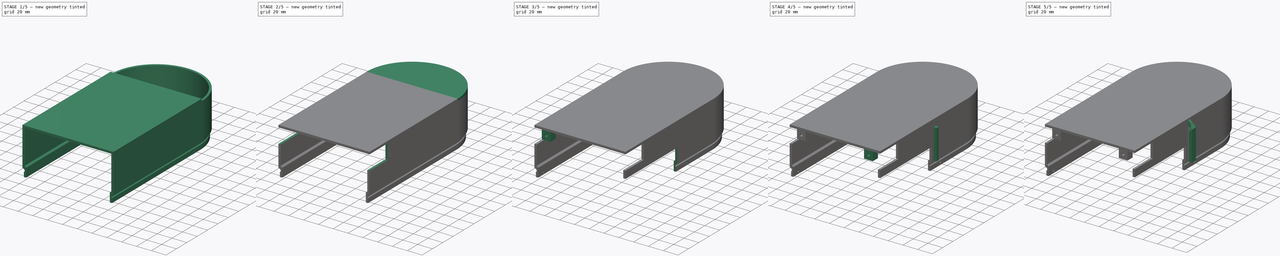
[diagram: build sequence overview — one tinted view per stage of 5, left to right]
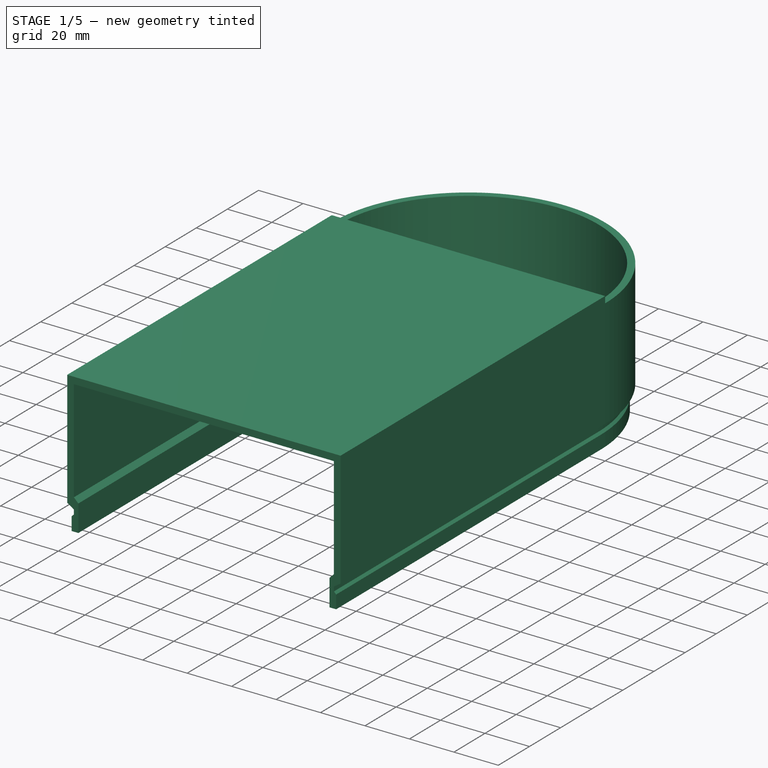
[diagram: stage 1 of 5 — iso view after this stage's code; geometry added in this stage tinted green]
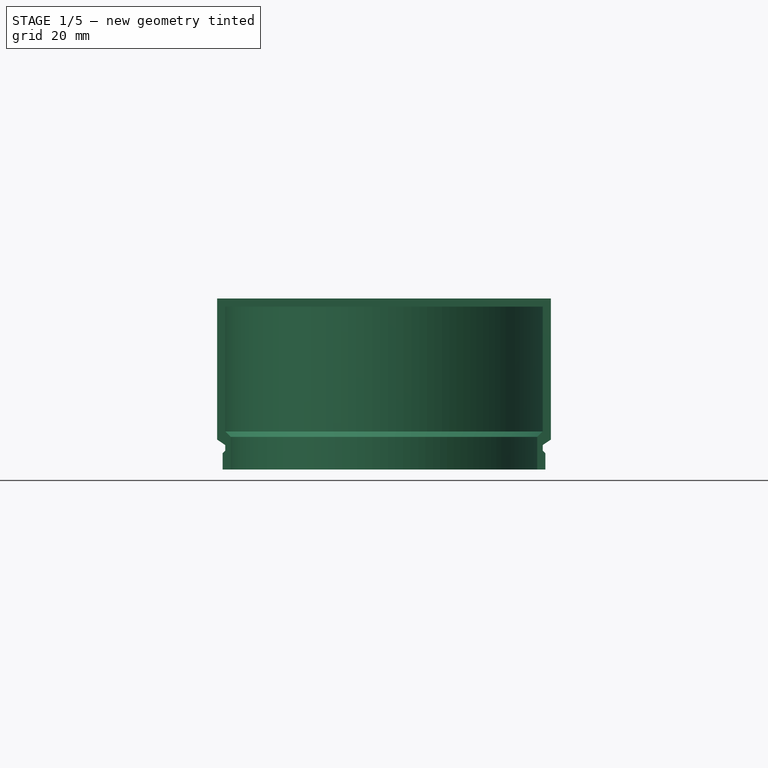
[diagram: stage 1 of 5 — front view after this stage's code; geometry added in this stage tinted green]
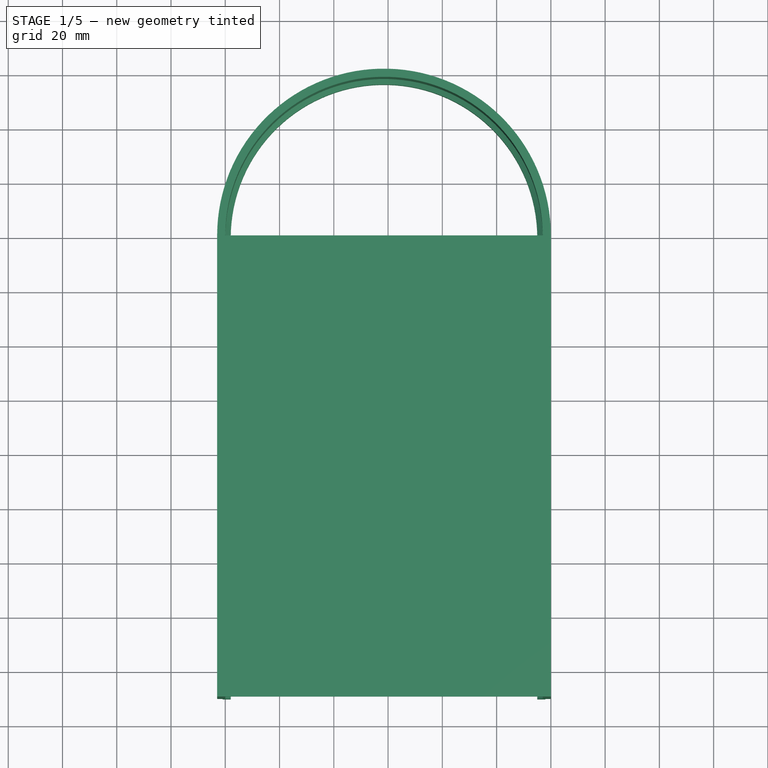
[diagram: stage 1 of 5 — top view after this stage's code; geometry added in this stage tinted green]
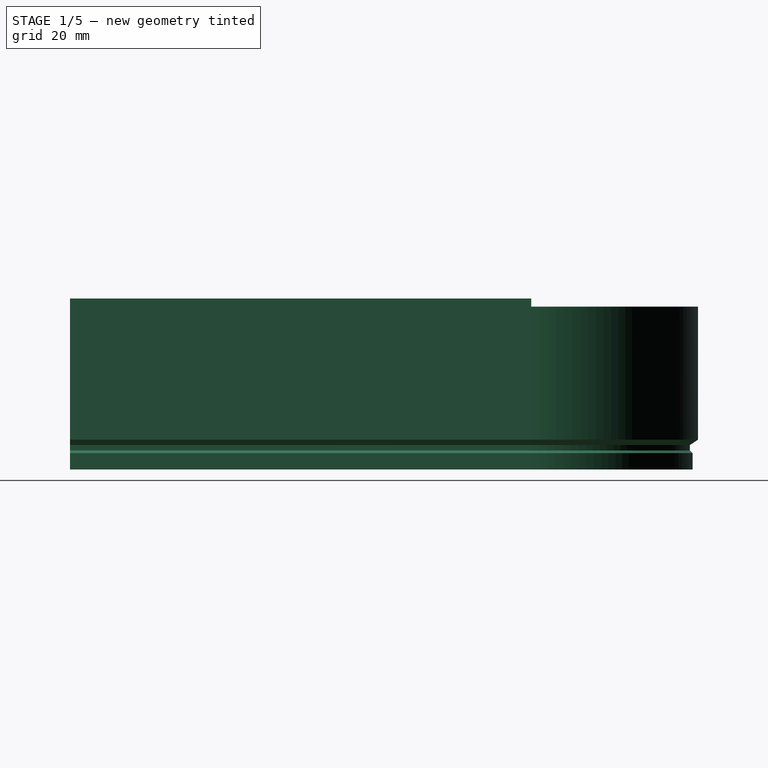
[diagram: stage 1 of 5 — right view after this stage's code; geometry added in this stage tinted green]
FCSTD DOCUMENT  (FreeCAD 1.0R39109 (Git))
Label: Top Layer - Pi Side - Wall
License: All rights reserved
LicenseURL: http://en.wikipedia.org/wiki/All_rights_reserved
objects: Sketcher::SketchObject×15, PartDesign::Pocket×8, PartDesign::Pad×7, PartDesign::Plane×3, PartDesign::Mirrored×3, App::Link×1, PartDesign::Line×1, PartDesign::Revolution×1, PartDesign::Body×1, App::Part×1
note: 89 computed .brp shape members not serialized (recipe doc carries the construction recipe); baked Part::Feature solids carry a one-line shape summary decoded from their .brp
EXTERNAL_REF file=../Master Document.FCStd obj=Spreadsheet

FEATURE [Sketcher::SketchObject] Sketch
  ArcFitTolerance = 1e-06
  AttachmentSupport = -> [XZ_Plane001]
  FullyConstrained = true
  MakeInternals = false
  MapMode = 5
  Placement = pos=(0,0,0) rot=(1,0,0;1.5708rad)
  sketch-geometry (11):
    g0: GeomPoint [constr] X=-3 Y=60 Z=0
    g1: LineSegment StartX=-3 StartY=60 StartZ=0 EndX=-3 EndY=14 EndZ=0
    g2: LineSegment StartX=0 StartY=11 StartZ=0 EndX=0 EndY=60 EndZ=0
    g3: LineSegment StartX=0 StartY=11 StartZ=0 EndX=-3 EndY=9 EndZ=0
    g4: LineSegment StartX=-3 StartY=9 StartZ=0 EndX=-3 EndY=7 EndZ=0
    g5: LineSegment StartX=-3 StartY=7 StartZ=0 EndX=-2 EndY=6 EndZ=0
    g6: LineSegment StartX=-2 StartY=6 StartZ=0 EndX=-2 EndY=0 EndZ=0
    g7: LineSegment StartX=-2 StartY=0 StartZ=0 EndX=-5 EndY=0 EndZ=0
    g8: LineSegment StartX=-5 StartY=0 StartZ=0 EndX=-5 EndY=12 EndZ=0
    g9: LineSegment StartX=-5 StartY=12 StartZ=0 EndX=-3 EndY=14 EndZ=0
    g10: LineSegment StartX=-3 StartY=60 StartZ=0 EndX=0 EndY=60 EndZ=0
  constraints (31):
    c: Coincident(g1,g0)
    c: DistanceX(g1,g2) = 3
    c: Vertical(g2,g2)
    c: Vertical(g1,g1)
    c: Coincident(g3,g2)
    c: Coincident(g4,g3)
    c: Coincident(g5,g4)
    c: Coincident(g6,g5)
    c: Coincident(g7,g6)
    c: Horizontal(g7)
    c: Vertical(g8)
    c: Coincident(g9,g8)
    c: Coincident(g9,g1)
    c: DistanceY(g6,g5) = 6
    c: Vertical(g6,g5)
    c: DistanceY(g3,g2) = 2
    c: Vertical(g3,g4)
    c: DistanceY(g4,g3) = 2
    c: DistanceX(g8,g1) = 2
    c: DistanceX(g7,g6) = 3
    c: DistanceX(g4,g5) = 1
    c: DistanceY(g8,g1) = 2
    c: DistanceY(g3,g8) = 3
    c: DistanceY(g6,g2) = 60
    c: Coincident(g8,g7)
    c: DistanceY(g5,g4) = 1
    c: Horizontal(g1,g2)
    c: Coincident(g10,g1)
    c: Coincident(g10,g2)
    c: Vertical(g2,g-1)
    c: Horizontal(g6,g-1)
FEATURE [PartDesign::Pad] Pad  label="Wall Side 1 Pad"
  Direction = (0,-1,2e-16)
  Length = 170
  Length2 = 10
  Placement = pos=(0,0,0) rot=(1,0,0;1.5708rad)
  Profile = -> Sketch
  ReferenceAxis = -> Sketch [N_Axis]
  Suppressed = false
  Type = 0
  expr: Length = <<Monitor Chassis Parameters>>.GSWallHalfLength
FEATURE [App::Link] Link  label="Monitor Chassis Parameters"
  LinkedObject = -> <external ../Master Document.FCStd>#Spreadsheet
FEATURE [PartDesign::Plane] DatumPlane  label="Centerline DatumPlane"
  AttachmentOffset = pos=(0,0,-61.5) rot=(0,0,1;0rad)
  AttachmentSupport = -> [YZ_Plane001]
  Length = 259.688
  MapMode = 5
  Placement = pos=(-61.5,0,0) rot=(0.57735,0.57735,0.57735;2.0944rad)
  ResizeMode = 0
  Width = 116.525
  expr: .AttachmentOffset.Base.z = -0.5 * <<Monitor Chassis Parameters>>.GSWallWidth
FEATURE [PartDesign::Line] DatumLine
  AttacherType = Attacher::AttachEngineLine
  AttachmentOffset = pos=(-61.5,0,0) rot=(0,0,1;0rad)
  AttachmentSupport = -> [Z_Axis001]
  Length = 20
  MapMode = 29
  Placement = pos=(-61.5,0,0) rot=(0,0,1;0rad)
  ResizeMode = 0
  expr: .AttachmentOffset.Base.x = -0.5 * <<Monitor Chassis Parameters>>.GSWallWidth
FEATURE [PartDesign::Revolution] Revolution  label="End Round Revolution"
  Angle = 180
  Angle2 = 60
  Axis = (0,0,1)
  Base = (-61.5,0,0)
  BaseFeature = -> Pad
  Placement = pos=(0,0,0) rot=(1,0,0;1.5708rad)
  Profile = -> Sketch
  ReferenceAxis = -> DatumLine
  Suppressed = false
  Type = 0
FEATURE [PartDesign::Mirrored] Mirrored  label="Side Wall Mirror"
  BaseFeature = -> Revolution
  MirrorPlane = -> DatumPlane
  Originals = -> [Pad]
  Placement = pos=(0,0,0) rot=(1,0,0;1.5708rad)
  Suppressed = false
  TransformMode = 0
FEATURE [PartDesign::Plane] DatumPlane001
  AttachmentOffset = pos=(0,0,170) rot=(0,0,1;0rad)
  AttachmentSupport = -> [XZ_Plane001]
  Length = 170.825
  MapMode = 5
  Placement = pos=(0,-170,3.77e-14) rot=(1,0,0;1.5708rad)
  ResizeMode = 0
  Width = 110.825
  expr: .AttachmentOffset.Base.z = <<Monitor Chassis Parameters>>.GSWallHalfLength
FEATURE [PartDesign::Plane] DatumPlane002
  AttachmentOffset = pos=(0,0,60) rot=(0,0,1;0rad)
  AttachmentSupport = -> [XY_Plane001]
  Length = 184.993
  MapMode = 5
  Placement = pos=(0,0,60) rot=(0,0,1;0rad)
  ResizeMode = 0
  Width = 268.156
  expr: .AttachmentOffset.Base.z = <<Monitor Chassis Parameters>>.GsMonitorWall3Height
FEATURE [Sketcher::SketchObject] Sketch001
  ArcFitTolerance = 1e-06
  AttachmentSupport = -> [DatumPlane002]
  FullyConstrained = true
  MakeInternals = false
  MapMode = 5
  Placement = pos=(0,0,60) rot=(0,0,1;0rad)
  expr: Constraints[10] = <<Monitor Chassis Parameters>>.GSWallWidth
  expr: Constraints[9] = <<Monitor Chassis Parameters>>.GSWallHalfLength
  sketch-geometry (4):
    g0: LineSegment StartX=0 StartY=-170 StartZ=0 EndX=0 EndY=0 EndZ=0
    g1: LineSegment StartX=0 StartY=0 StartZ=0 EndX=-123 EndY=0 EndZ=0
    g2: LineSegment StartX=-123 StartY=0 StartZ=0 EndX=-123 EndY=-170 EndZ=0
    g3: LineSegment StartX=-123 StartY=-170 StartZ=0 EndX=0 EndY=-170 EndZ=0
  constraints (11):
    c: Coincident(g0,g1)
    c: Coincident(g1,g2)
    c: Coincident(g2,g3)
    c: Coincident(g3,g0)
    c: Vertical(g0)
    c: Vertical(g2)
    c: Horizontal(g1)
    c: Horizontal(g3)
    c: Coincident(g0,g-1)
    c: DistanceY(g0,g0) = 170
    c: DistanceX(g2,g0) = 123
FEATURE [PartDesign::Pad] Pad001  label="Top Ceiling Rectangle Pad"
  BaseFeature = -> Mirrored
  Direction = (0,0,1)
  Length = 3
  Length2 = 10
  Placement = pos=(0,0,0) rot=(1,0,0;1.5708rad)
  Profile = -> Sketch001
  ReferenceAxis = -> Sketch001 [N_Axis]
  Suppressed = false
  Type = 0
  expr: Length = <<Monitor Chassis Parameters>>.GSThinWallThickness
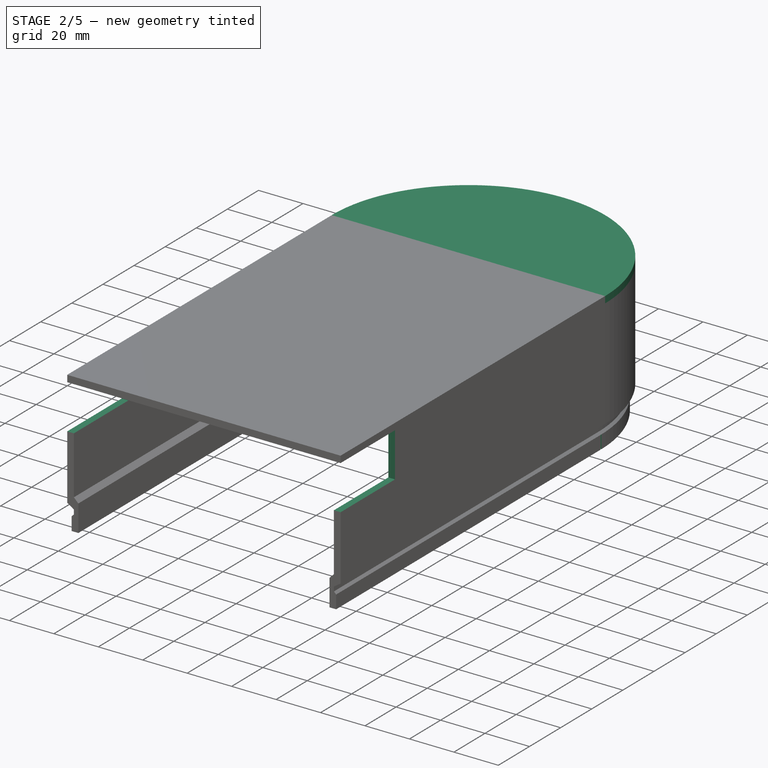
[diagram: stage 2 of 5 — iso view after this stage's code; geometry added in this stage tinted green]
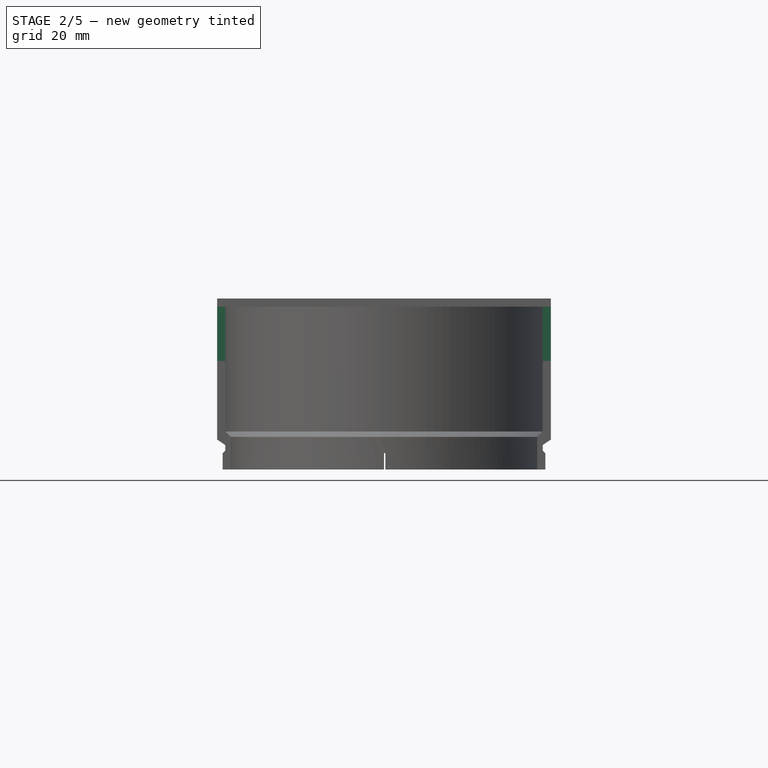
[diagram: stage 2 of 5 — front view after this stage's code; geometry added in this stage tinted green]
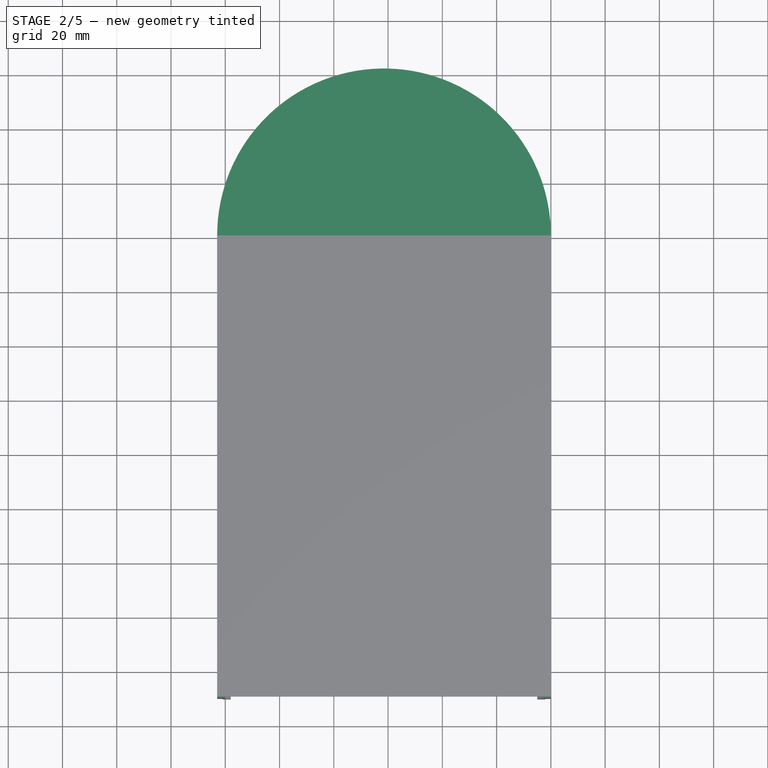
[diagram: stage 2 of 5 — top view after this stage's code; geometry added in this stage tinted green]
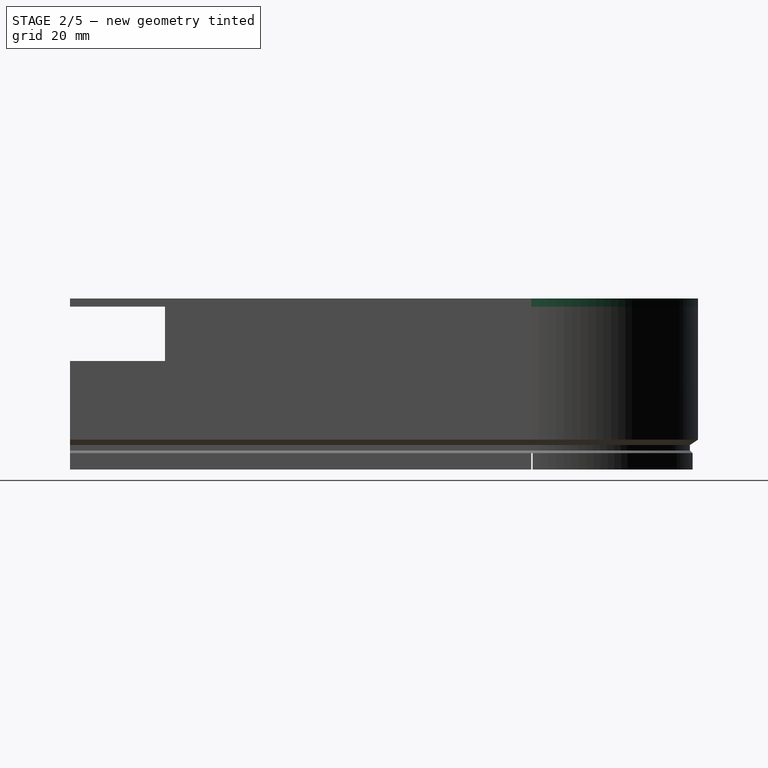
[diagram: stage 2 of 5 — right view after this stage's code; geometry added in this stage tinted green]
FEATURE [Sketcher::SketchObject] Sketch002
  ArcFitTolerance = 1e-06
  AttachmentSupport = -> [DatumPlane002]
  ExternalGeometry = -> [Pad001]
  FullyConstrained = true
  MakeInternals = false
  MapMode = 5
  Placement = pos=(0,0,60) rot=(0,0,1;0rad)
  sketch-geometry (2):
    g0: ArcOfCircle CenterX=-61.5 CenterY=0 CenterZ=0 NormalX=0 NormalY=0 NormalZ=1 AngleXU=0 Radius=61.5 StartAngle=0 EndAngle=3.14159
    g1: LineSegment StartX=-123 StartY=7.5e-15 StartZ=0 EndX=0 EndY=0 EndZ=0
  constraints (5):
    c: PointOnObject(g0,g-1)
    c: Coincident(g0,g-1)
    c: Coincident(g0,g-3)
    c: Coincident(g1,g0)
    c: Coincident(g1,g0)
FEATURE [PartDesign::Pad] Pad002  label="End Round Ceiling Pad"
  BaseFeature = -> Pad001
  Direction = (0,0,1)
  Length = 3
  Length2 = 10
  Placement = pos=(0,0,0) rot=(1,0,0;1.5708rad)
  Profile = -> Sketch002
  ReferenceAxis = -> Sketch002 [N_Axis]
  Suppressed = false
  Type = 0
  expr: Length = <<Monitor Chassis Parameters>>.GSThinWallThickness
FEATURE [Sketcher::SketchObject] Sketch003
  ArcFitTolerance = 1e-06
  AttachmentSupport = -> [YZ_Plane001]
  FullyConstrained = true
  MakeInternals = false
  MapMode = 5
  Placement = pos=(0,0,0) rot=(0.57735,0.57735,0.57735;2.0944rad)
  expr: Constraints[10] = <<Monitor Chassis Parameters>>.GsMonitorWall3Height
  expr: Constraints[11] = <<Monitor Chassis Parameters>>.GSWallHalfLength
  expr: Constraints[8] = <<Monitor Chassis Parameters>>.GsTopHandHoldWidth
  expr: Constraints[9] = 0.5 * <<Monitor Chassis Parameters>>.GsTopHandHoldLength
  sketch-geometry (4):
    g0: LineSegment StartX=-135 StartY=40 StartZ=0 EndX=-135 EndY=60 EndZ=0
    g1: LineSegment StartX=-135 StartY=60 StartZ=0 EndX=-170 EndY=60 EndZ=0
    g2: LineSegment StartX=-170 StartY=60 StartZ=0 EndX=-170 EndY=40 EndZ=0
    g3: LineSegment StartX=-170 StartY=40 StartZ=0 EndX=-135 EndY=40 EndZ=0
  constraints (12):
    c: Coincident(g0,g1)
    c: Coincident(g1,g2)
    c: Coincident(g2,g3)
    c: Coincident(g3,g0)
    c: Vertical(g0)
    c: Vertical(g2)
    c: Horizontal(g1)
    c: Horizontal(g3)
    c: DistanceY(g2,g1) = 20
    c: DistanceX(g2,g0) = 35
    c: DistanceY(g-1,g1) = 60
    c: DistanceX(g2,g-1) = 170
FEATURE [PartDesign::Pocket] Pocket  label="Hand Hold Pocket"
  BaseFeature = -> Pad002
  Direction = (-1,0,0)
  Length = 5
  Length2 = 5
  Placement = pos=(0,0,0) rot=(1,0,0;1.5708rad)
  Profile = -> Sketch003
  ReferenceAxis = -> Sketch003 [N_Axis]
  Suppressed = false
  Type = 1
FEATURE [Sketcher::SketchObject] Sketch004
  ArcFitTolerance = 1e-06
  AttachmentSupport = -> [YZ_Plane001]
  FullyConstrained = true
  MakeInternals = false
  MapMode = 5
  Placement = pos=(0,0,0) rot=(0.57735,0.57735,0.57735;2.0944rad)
  expr: Constraints[10] = <<Monitor Chassis Parameters>>.GSCamWallClickLength
  expr: Constraints[9] = <<Monitor Chassis Parameters>>.GSMonitorWallTensionReliefCutWidth
  sketch-geometry (4):
    g0: LineSegment StartX=0 StartY=0 StartZ=0 EndX=0.5 EndY=0 EndZ=0
    g1: LineSegment StartX=0.5 StartY=0 StartZ=0 EndX=0.5 EndY=6 EndZ=0
    g2: LineSegment StartX=0.5 StartY=6 StartZ=0 EndX=0 EndY=6 EndZ=0
    g3: LineSegment StartX=0 StartY=6 StartZ=0 EndX=0 EndY=0 EndZ=0
  constraints (11):
    c: Coincident(g0,g1)
    c: Coincident(g1,g2)
    c: Coincident(g2,g3)
    c: Coincident(g3,g0)
    c: Horizontal(g0)
    c: Horizontal(g2)
    c: Vertical(g1)
    c: Vertical(g3)
    c: Coincident(g0,g-1)
    c: DistanceX(g0,g0) = 0.5
    c: DistanceY(g0,g1) = 6
FEATURE [Sketcher::SketchObject] Sketch005
  ArcFitTolerance = 1e-06
  AttachmentSupport = -> [DatumPlane001]
  FullyConstrained = true
  MakeInternals = false
  MapMode = 5
  Placement = pos=(0,-170,3.77e-14) rot=(1,0,0;1.5708rad)
  expr: Constraints[10] = <<Monitor Chassis Parameters>>.GSCamWallClickLength
  expr: Constraints[11] = <<Monitor Chassis Parameters>>.GSMonitorWallTensionReliefCutWidth
  expr: Constraints[8] = 0.5 * <<Monitor Chassis Parameters>>.GSWallWidth
  sketch-geometry (4):
    g0: LineSegment StartX=-61 StartY=6 StartZ=0 EndX=-61 EndY=0 EndZ=0
    g1: LineSegment StartX=-61 StartY=0 StartZ=0 EndX=-61.5 EndY=0 EndZ=0
    g2: LineSegment StartX=-61.5 StartY=0 StartZ=0 EndX=-61.5 EndY=6 EndZ=0
    g3: LineSegment StartX=-61.5 StartY=6 StartZ=0 EndX=-61 EndY=6 EndZ=0
  constraints (12):
    c: Coincident(g0,g1)
    c: Coincident(g1,g2)
    c: Coincident(g2,g3)
    c: Coincident(g3,g0)
    c: Vertical(g0)
    c: Vertical(g2)
    c: Horizontal(g1)
    c: Horizontal(g3)
    c: DistanceX(g1,g-1) = 61.5
    c: Horizontal(g-1,g0)
    c: DistanceY(g0,g0) = 6
    c: DistanceX(g2,g0) = 0.5
FEATURE [PartDesign::Pocket] Pocket001  label="Side Tension Relief Pocket"
  BaseFeature = -> Pocket
  Direction = (-1,0,0)
  Length = 5
  Length2 = 5
  Placement = pos=(0,0,0) rot=(1,0,0;1.5708rad)
  Profile = -> Sketch004
  ReferenceAxis = -> Sketch004 [N_Axis]
  Suppressed = false
  Type = 1
FEATURE [PartDesign::Pocket] Pocket002  label="End Round Tension Relief Pocket"
  BaseFeature = -> Pocket001
  Direction = (0,1,-2e-16)
  Length = 5
  Length2 = 5
  Placement = pos=(0,0,0) rot=(1,0,0;1.5708rad)
  Profile = -> Sketch005
  ReferenceAxis = -> Sketch005 [N_Axis]
  Suppressed = false
  Type = 1
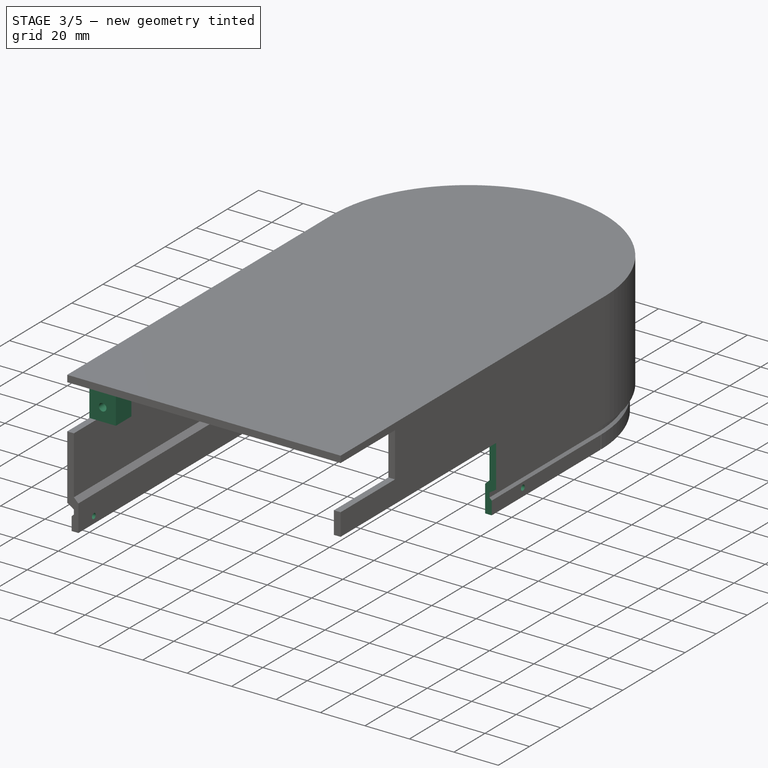
[diagram: stage 3 of 5 — iso view after this stage's code; geometry added in this stage tinted green]
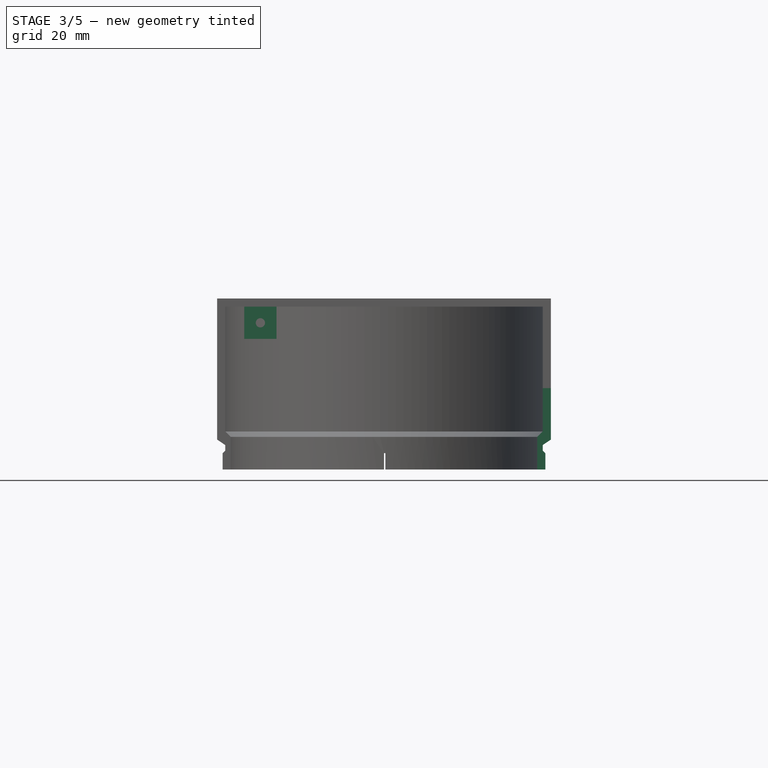
[diagram: stage 3 of 5 — front view after this stage's code; geometry added in this stage tinted green]
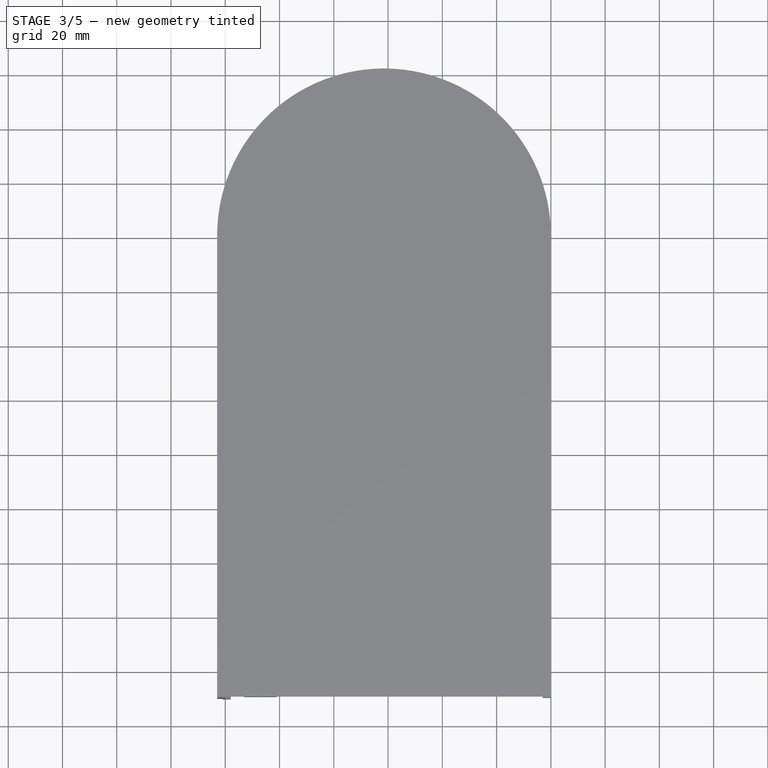
[diagram: stage 3 of 5 — top view after this stage's code; geometry added in this stage tinted green]
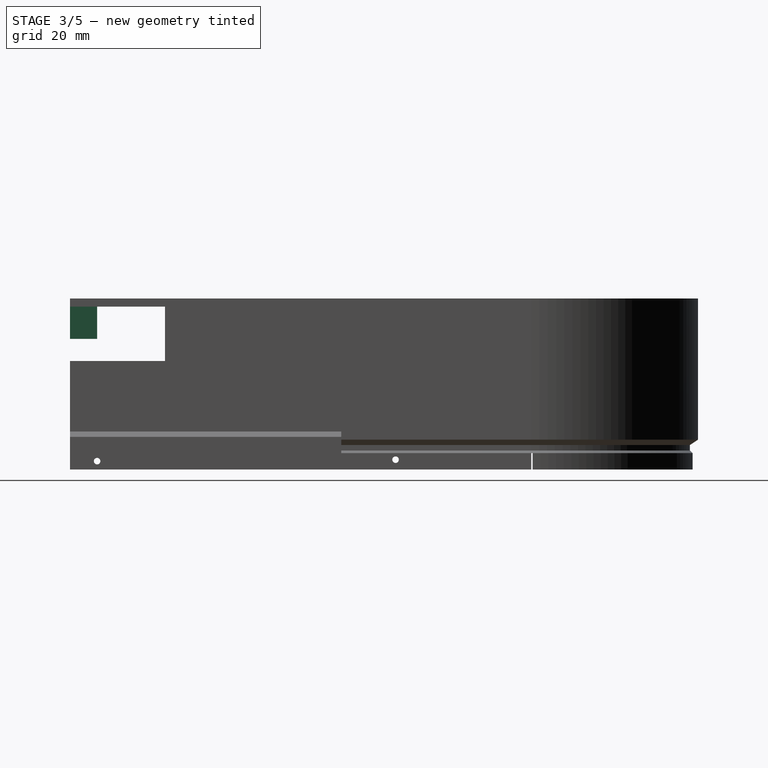
[diagram: stage 3 of 5 — right view after this stage's code; geometry added in this stage tinted green]
FEATURE [Sketcher::SketchObject] Sketch006
  ArcFitTolerance = 1e-06
  AttachmentSupport = -> [YZ_Plane001]
  FullyConstrained = true
  MakeInternals = false
  MapMode = 5
  Placement = pos=(0,0,0) rot=(0.57735,0.57735,0.57735;2.0944rad)
  expr: Constraints[11] = <<Monitor Chassis Parameters>>.GSWallHalfLength
  expr: Constraints[8] = <<Monitor Chassis Parameters>>.GsMonitorCamera2WindowHeightWall3
  expr: Constraints[9] = <<Monitor Chassis Parameters>>.GSMonitorViewPortLengthRight
  sketch-geometry (4):
    g0: LineSegment StartX=-170 StartY=0 StartZ=0 EndX=-70 EndY=0 EndZ=0
    g1: LineSegment StartX=-70 StartY=0 StartZ=0 EndX=-70 EndY=30 EndZ=0
    g2: LineSegment StartX=-70 StartY=30 StartZ=0 EndX=-170 EndY=30 EndZ=0
    g3: LineSegment StartX=-170 StartY=30 StartZ=0 EndX=-170 EndY=0 EndZ=0
  constraints (12):
    c: Coincident(g0,g1)
    c: Coincident(g1,g2)
    c: Coincident(g2,g3)
    c: Coincident(g3,g0)
    c: Horizontal(g0)
    c: Horizontal(g2)
    c: Vertical(g1)
    c: Vertical(g3)
    c: DistanceY(g0,g2) = 30
    c: DistanceX(g2,g1) = 100
    c: Horizontal(g0,g-1)
    c: DistanceX(g0,g-1) = 170
FEATURE [PartDesign::Pocket] Pocket003  label="Camera 1 Viewport Pocket"
  BaseFeature = -> Pocket002
  Direction = (-1,0,0)
  Length = 5
  Length2 = 5
  Placement = pos=(0,0,0) rot=(1,0,0;1.5708rad)
  Profile = -> Sketch006
  ReferenceAxis = -> Sketch006 [N_Axis]
  Suppressed = false
  Type = 0
FEATURE [Sketcher::SketchObject] Sketch007
  ArcFitTolerance = 1e-06
  AttachmentSupport = -> [YZ_Plane001]
  FullyConstrained = false
  MakeInternals = false
  MapMode = 5
  Placement = pos=(0,0,0) rot=(0.57735,0.57735,0.57735;2.0944rad)
  expr: Constraints[0] = <<Monitor Chassis Parameters>>.GSM3TappingScrewHoleDiameter
  expr: Constraints[1] = <<Monitor Chassis Parameters>>.GSWallHalfLength - <<Monitor Chassis Parameters>>.GsMonitorInterFloorJoinScrewOffsetFromCenter
  expr: Constraints[2] = 1.5 * <<Monitor Chassis Parameters>>.GSM3TappingScrewHoleDiameter
  expr: Constraints[3] = <<Monitor Chassis Parameters>>.GSWallHalfLength - 10
  expr: Constraints[4] = <<Monitor Chassis Parameters>>.GSM3TappingScrewHoleDiameter
  sketch-geometry (2):
    g0: Circle CenterX=-50 CenterY=3.6 CenterZ=0 NormalX=0 NormalY=0 NormalZ=1 AngleXU=0 Radius=1.2
    g1: Circle CenterX=-160 CenterY=3.07285 CenterZ=0 NormalX=0 NormalY=0 NormalZ=1 AngleXU=0 Radius=1.2
  constraints (5):
    c: Diameter(g0) = 2.4
    c: DistanceX(g0,g-1) = 50
    c: DistanceY(g-1,g0) = 3.6
    c: DistanceX(g1,g-1) = 160
    c: Diameter(g1) = 2.4
FEATURE [PartDesign::Pocket] Pocket004  label="Floor Join Screw Pocket"
  BaseFeature = -> Pocket003
  Direction = (-1,0,0)
  Length = 5
  Length2 = 5
  Placement = pos=(0,0,0) rot=(1,0,0;1.5708rad)
  Profile = -> Sketch007
  ReferenceAxis = -> Sketch007 [N_Axis]
  Suppressed = false
  Type = 1
FEATURE [Sketcher::SketchObject] Sketch008
  ArcFitTolerance = 1e-06
  AttachmentSupport = -> [DatumPlane001]
  FullyConstrained = true
  MakeInternals = false
  MapMode = 5
  Placement = pos=(0,-170,3.77e-14) rot=(1,0,0;1.5708rad)
  expr: Constraints[10] = 1.8 * <<Monitor Chassis Parameters>>.GSCamM3NutHexagonDiameter
  expr: Constraints[11] = <<Monitor Chassis Parameters>>.GsMonitorWall3Height
  expr: Constraints[12] = <<Monitor Chassis Parameters>>.GSMonitorWallHalfConnectionBoltDiameter
  expr: Constraints[13] = 0.9 * <<Monitor Chassis Parameters>>.GSCamM3NutHexagonDiameter
  expr: Constraints[14] = 0.9 * <<Monitor Chassis Parameters>>.GSCamM3NutHexagonDiameter
  expr: Constraints[8] = 1.8 * <<Monitor Chassis Parameters>>.GSCamM3NutHexagonDiameter
  expr: Constraints[9] = <<Monitor Chassis Parameters>>.GSWallWidth - <<Monitor Chassis Parameters>>.GsMonitorFloor3HalfJoinPadIndentFromFront
  sketch-geometry (5):
    g0: LineSegment StartX=-113 StartY=48.12 StartZ=0 EndX=-101.12 EndY=48.12 EndZ=0
    g1: LineSegment StartX=-101.12 StartY=48.12 StartZ=0 EndX=-101.12 EndY=60 EndZ=0
    g2: LineSegment StartX=-101.12 StartY=60 StartZ=0 EndX=-113 EndY=60 EndZ=0
    g3: LineSegment StartX=-113 StartY=60 StartZ=0 EndX=-113 EndY=48.12 EndZ=0
    g4: Circle CenterX=-107.06 CenterY=54.06 CenterZ=0 NormalX=0 NormalY=0 NormalZ=1 AngleXU=0 Radius=1.7
  constraints (15):
    c: Coincident(g0,g1)
    c: Coincident(g1,g2)
    c: Coincident(g2,g3)
    c: Coincident(g3,g0)
    c: Horizontal(g0)
    c: Horizontal(g2)
    c: Vertical(g1)
    c: Vertical(g3)
    c: DistanceX(g2,g1) = 11.88
    c: DistanceX(g2,g-1) = 113
    c: DistanceY(g0,g1) = 11.88
    c: DistanceY(g-1,g1) = 60
    c: Diameter(g4) = 3.4
    c: DistanceY(g0,g4) = 5.94
    c: DistanceX(g4,g1) = 5.94
FEATURE [PartDesign::Pad] Pad003  label="Half Join Pad"
  BaseFeature = -> Pocket004
  Direction = (0,-1,2e-16)
  Length = 10
  Length2 = 10
  Placement = pos=(0,0,0) rot=(1,0,0;1.5708rad)
  Profile = -> Sketch008
  ReferenceAxis = -> Sketch008 [N_Axis]
  Reversed = true
  Suppressed = false
  Type = 0
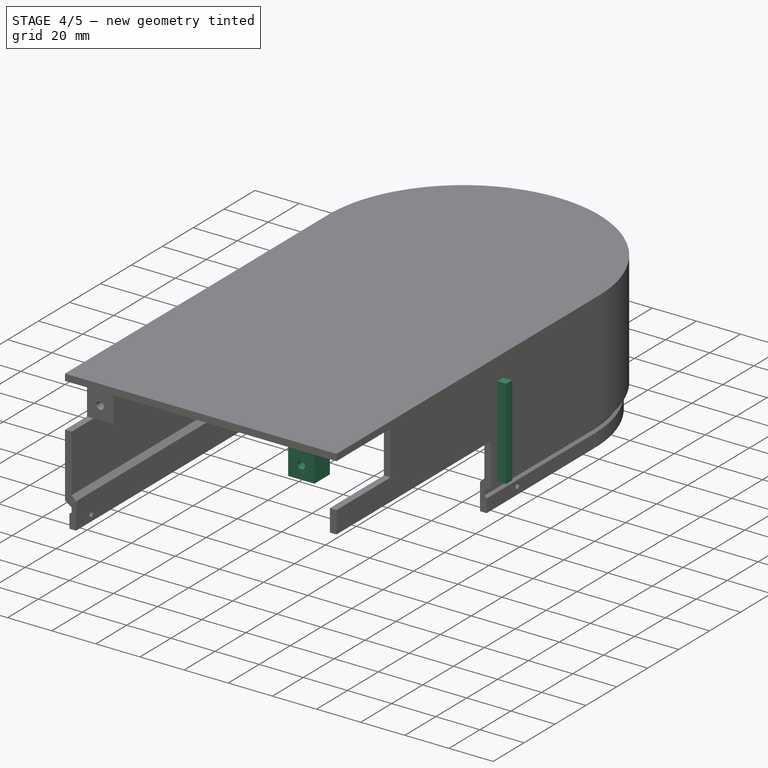
[diagram: stage 4 of 5 — iso view after this stage's code; geometry added in this stage tinted green]
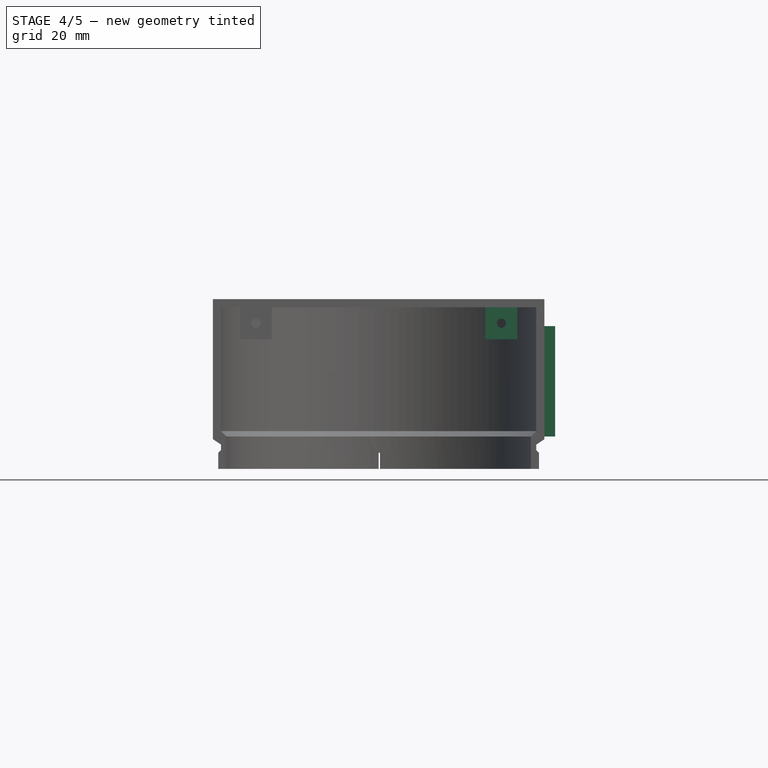
[diagram: stage 4 of 5 — front view after this stage's code; geometry added in this stage tinted green]
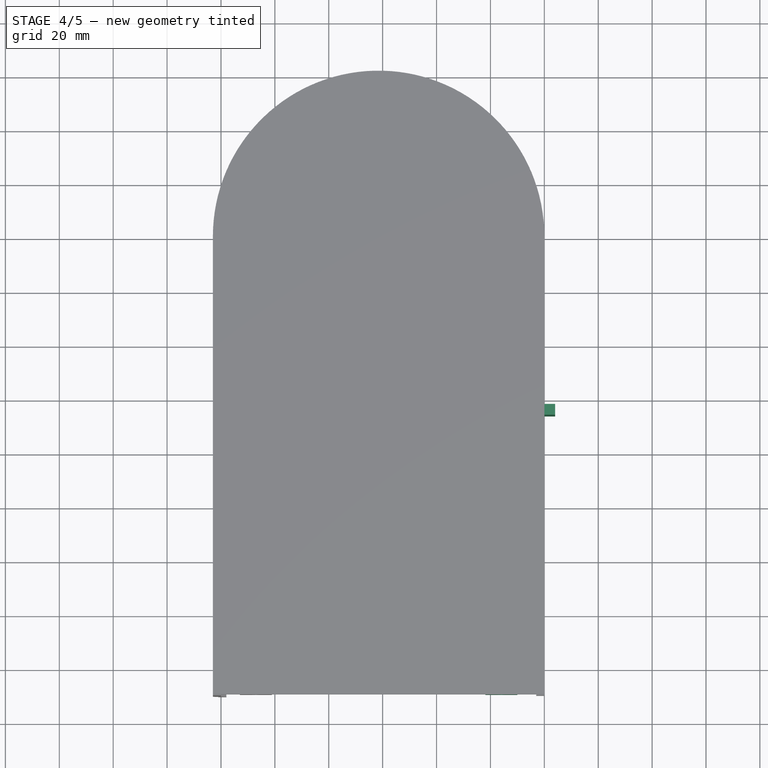
[diagram: stage 4 of 5 — top view after this stage's code; geometry added in this stage tinted green]
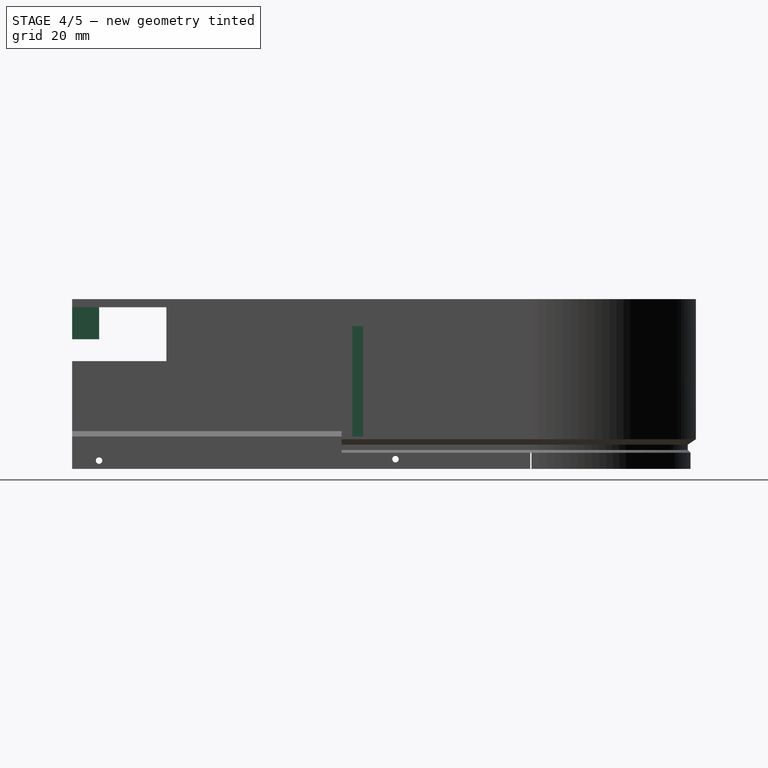
[diagram: stage 4 of 5 — right view after this stage's code; geometry added in this stage tinted green]
FEATURE [PartDesign::Mirrored] Mirrored001  label="Half Join Pad Mirror"
  BaseFeature = -> Pad003
  MirrorPlane = -> DatumPlane
  Originals = -> [Pad003]
  Placement = pos=(0,0,0) rot=(1,0,0;1.5708rad)
  Suppressed = false
  TransformMode = 0
FEATURE [Sketcher::SketchObject] Sketch009
  ArcFitTolerance = 1e-06
  AttachmentSupport = -> [Mirrored001]
  ExternalGeometry = -> [Mirrored001]
  FullyConstrained = true
  MakeInternals = false
  MapMode = 5
  Placement = pos=(0,-160,0) rot=(-1,0,0;1.5708rad)
  expr: Constraints[18] = <<Monitor Chassis Parameters>>.GSCamM3NutHexagonDiameter
  sketch-geometry (7):
    g0: LineSegment StartX=-104.202 StartY=-52.41 StartZ=0 EndX=-107.06 EndY=-50.76 EndZ=0
    g1: LineSegment StartX=-107.06 StartY=-50.76 StartZ=0 EndX=-109.918 EndY=-52.41 EndZ=0
    g2: LineSegment StartX=-109.918 StartY=-52.41 StartZ=0 EndX=-109.918 EndY=-55.71 EndZ=0
    g3: LineSegment StartX=-109.918 StartY=-55.71 StartZ=0 EndX=-107.06 EndY=-57.36 EndZ=0
    g4: LineSegment StartX=-107.06 StartY=-57.36 StartZ=0 EndX=-104.202 EndY=-55.71 EndZ=0
    g5: LineSegment StartX=-104.202 StartY=-55.71 StartZ=0 EndX=-104.202 EndY=-52.41 EndZ=0
    g6: Circle [constr] CenterX=-107.06 CenterY=-54.06 CenterZ=0 NormalX=0 NormalY=0 NormalZ=1 AngleXU=0 Radius=3.3
  constraints (16):
    c: Coincident(g0,g1)
    c: Coincident(g1,g2)
    c: Coincident(g2,g3)
    c: Coincident(g3,g4)
    c: Coincident(g4,g5)
    c: Coincident(g5,g0)
    c: Equal(g0, g1-g5) x5
    c: PointOnObject(g0,g6)
    c: PointOnObject(g1,g6)
    c: PointOnObject(g2,g6)
    c: PointOnObject(g3,g6)
    c: PointOnObject(g4,g6)
    c: PointOnObject(g5,g6)
    c: Coincident(g6,g-3)
    c: Diameter(g6) = 6.6
    c: Horizontal(g1,g0)
FEATURE [PartDesign::Pocket] Pocket005  label="Half Join Nut Indent Pocket"
  BaseFeature = -> Mirrored001
  Direction = (0,-1,-2e-16)
  Length = 5
  Length2 = 5
  Placement = pos=(0,0,0) rot=(1,0,0;1.5708rad)
  Profile = -> Sketch009
  ReferenceAxis = -> Sketch009 [N_Axis]
  Suppressed = false
  Type = 0
FEATURE [PartDesign::Mirrored] Mirrored002  label="Half Join Nut Indent Pocket Mirror"
  BaseFeature = -> Pocket005
  MirrorPlane = -> DatumPlane
  Originals = -> [Pocket005]
  Placement = pos=(0,0,0) rot=(1,0,0;1.5708rad)
  Suppressed = false
  TransformMode = 0
FEATURE [Sketcher::SketchObject] Sketch010
  ArcFitTolerance = 1e-06
  AttachmentSupport = -> [YZ_Plane001]
  FullyConstrained = true
  MakeInternals = false
  MapMode = 5
  Placement = pos=(0,0,0) rot=(0.57735,0.57735,0.57735;2.0944rad)
  expr: Constraints[10] = <<Monitor Chassis Parameters>>.GSWallHalfLength - <<Monitor Chassis Parameters>>.GSMonitorViewPortLengthRight - <<Monitor Chassis Parameters>>.GsMonitorViewportWindowFrameThickness
  expr: Constraints[11] = <<Monitor Chassis Parameters>>.GsMonitorWall3Height + <<Monitor Chassis Parameters>>.GSThinWallThickness - 10
  expr: Constraints[8] = <<Monitor Chassis Parameters>>.GsMonitorViewportWindowFrameThickness
  expr: Constraints[9] = 2 * <<Monitor Chassis Parameters>>.GSCamWallClickLength
  sketch-geometry (4):
    g0: LineSegment StartX=-66 StartY=53 StartZ=0 EndX=-66 EndY=12 EndZ=0
    g1: LineSegment StartX=-66 StartY=12 StartZ=0 EndX=-62 EndY=12 EndZ=0
    g2: LineSegment StartX=-62 StartY=12 StartZ=0 EndX=-62 EndY=53 EndZ=0
    g3: LineSegment StartX=-62 StartY=53 StartZ=0 EndX=-66 EndY=53 EndZ=0
  constraints (12):
    c: Coincident(g0,g1)
    c: Coincident(g1,g2)
    c: Coincident(g2,g3)
    c: Coincident(g3,g0)
    c: Vertical(g0)
    c: Vertical(g2)
    c: Horizontal(g1)
    c: Horizontal(g3)
    c: DistanceX(g0,g2) = 4
    c: DistanceY(g-1,g1) = 12
    c: DistanceX(g0,g-1) = 66
    c: DistanceY(g-1,g2) = 53
FEATURE [PartDesign::Pad] Pad004  label="Window Frame Base Pad"
  BaseFeature = -> Mirrored002
  Direction = (1,0,0)
  Length = 4
  Length2 = 10
  Placement = pos=(0,0,0) rot=(1,0,0;1.5708rad)
  Profile = -> Sketch010
  ReferenceAxis = -> Sketch010 [N_Axis]
  Suppressed = false
  Type = 0
  expr: Length = <<Monitor Chassis Parameters>>.GsMonitorViewportWindowFrameThickness
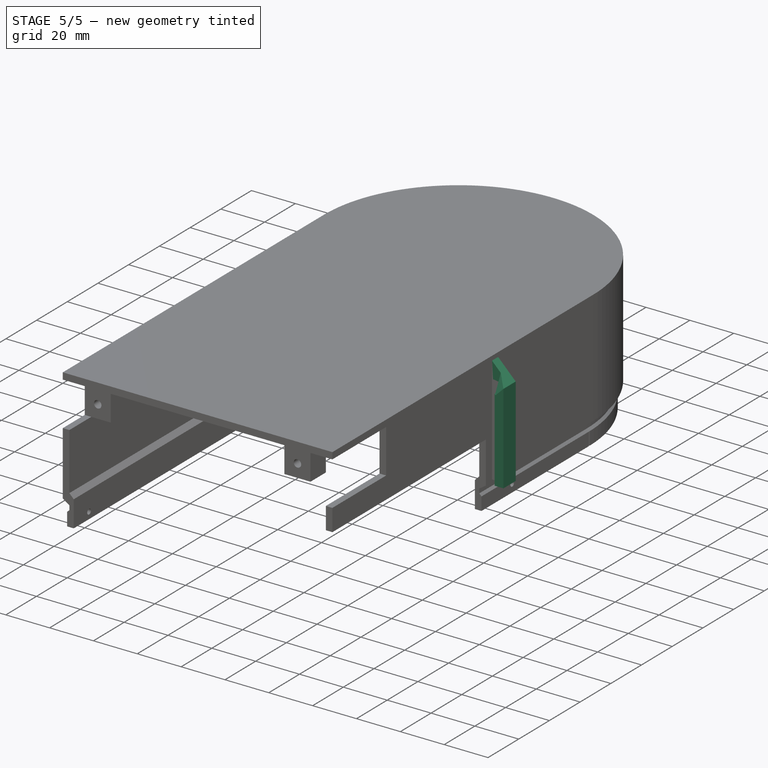
[diagram: stage 5 of 5 — iso view after this stage's code; geometry added in this stage tinted green]
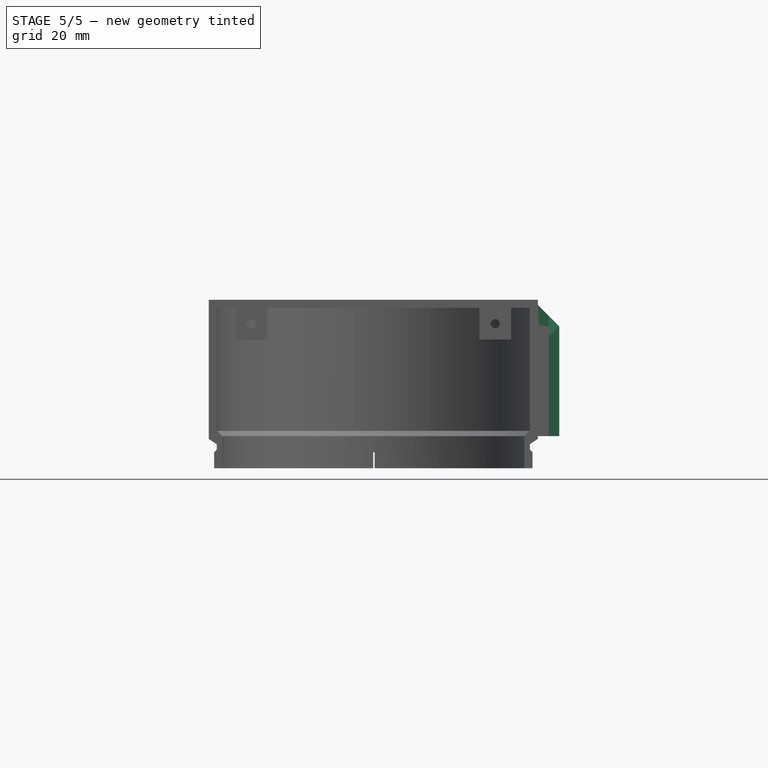
[diagram: stage 5 of 5 — front view after this stage's code; geometry added in this stage tinted green]
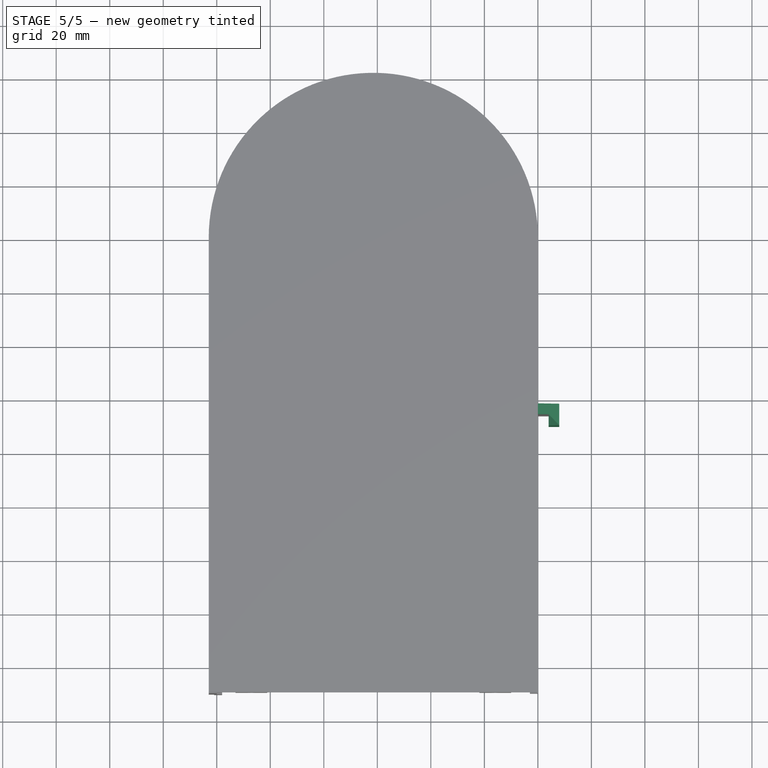
[diagram: stage 5 of 5 — top view after this stage's code; geometry added in this stage tinted green]
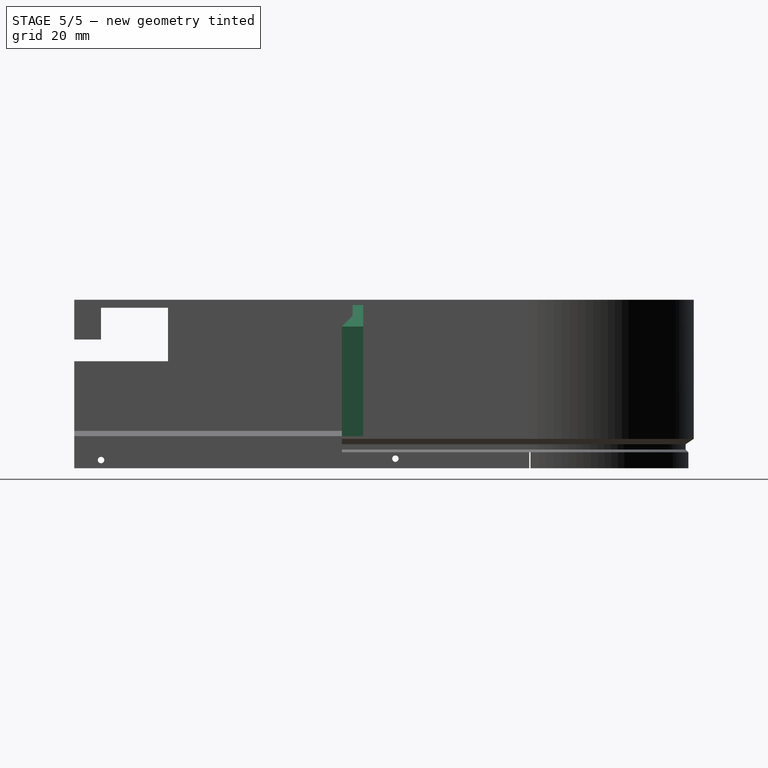
[diagram: stage 5 of 5 — right view after this stage's code; geometry added in this stage tinted green]
FEATURE [Sketcher::SketchObject] Sketch011
  ArcFitTolerance = 1e-06
  AttachmentSupport = -> [Pad004]
  ExternalGeometry = -> [Pad004]
  FullyConstrained = true
  MakeInternals = false
  MapMode = 5
  Placement = pos=(4,0,0) rot=(0.707107,0,0.707107;3.14159rad)
  expr: Constraints[10] = <<Monitor Chassis Parameters>>.GsMonitorViewportWindowFrameThickness
  sketch-geometry (4):
    g0: LineSegment StartX=53 StartY=62 StartZ=0 EndX=53 EndY=70 EndZ=0
    g1: LineSegment StartX=53 StartY=70 StartZ=0 EndX=12 EndY=70 EndZ=0
    g2: LineSegment StartX=12 StartY=70 StartZ=0 EndX=12 EndY=62 EndZ=0
    g3: LineSegment StartX=12 StartY=62 StartZ=0 EndX=53 EndY=62 EndZ=0
  constraints (11):
    c: Coincident(g0,g1)
    c: Coincident(g1,g2)
    c: Coincident(g2,g3)
    c: Coincident(g3,g0)
    c: Vertical(g0)
    c: Vertical(g2)
    c: Horizontal(g1)
    c: Horizontal(g3)
    c: Coincident(g0,g-3)
    c: Vertical(g1,g-4)
    c: DistanceY(g-4,g1) = 4
FEATURE [PartDesign::Pad] Pad005  label="Window Frame Pad"
  BaseFeature = -> Pad004
  Direction = (1,0,-2e-16)
  Length = 4
  Length2 = 10
  Placement = pos=(0,0,0) rot=(1,0,0;1.5708rad)
  Profile = -> Sketch011
  ReferenceAxis = -> Sketch011 [N_Axis]
  Suppressed = false
  Type = 0
  expr: Length = <<Monitor Chassis Parameters>>.GsMonitorViewportWindowFrameThickness
FEATURE [Sketcher::SketchObject] Sketch012
  ArcFitTolerance = 1e-06
  AttachmentSupport = -> [Pad005]
  ExternalGeometry = -> [Pad005]
  FullyConstrained = true
  MakeInternals = false
  MapMode = 5
  Placement = pos=(0,-62,1.36e-14) rot=(-1,0,0;1.5708rad)
  expr: Constraints[6] = 2 * <<Monitor Chassis Parameters>>.GsMonitorViewportWindowFrameThickness
  sketch-geometry (3):
    g0: LineSegment StartX=0 StartY=-53 StartZ=0 EndX=8 EndY=-53 EndZ=0
    g1: LineSegment StartX=8 StartY=-53 StartZ=0 EndX=0 EndY=-61 EndZ=0
    g2: LineSegment StartX=0 StartY=-61 StartZ=0 EndX=0 EndY=-53 EndZ=0
  constraints (7):
    c: Coincident(g0,g-3)
    c: Coincident(g0,g-4)
    c: Coincident(g1,g0)
    c: Coincident(g2,g1)
    c: Coincident(g2,g0)
    c: Vertical(g2)
    c: DistanceY(g1,g0) = 8
FEATURE [PartDesign::Pad] Pad006  label="Window Frame Riser 1 Pad"
  BaseFeature = -> Pad005
  Direction = (0,1,2e-16)
  Length = 8
  Length2 = 10
  Placement = pos=(0,0,0) rot=(1,0,0;1.5708rad)
  Profile = -> Sketch012
  ReferenceAxis = -> Sketch012 [N_Axis]
  Reversed = true
  Suppressed = false
  Type = 0
  expr: Length = 2 * <<Monitor Chassis Parameters>>.GsMonitorViewportWindowFrameThickness
FEATURE [Sketcher::SketchObject] Sketch013
  ArcFitTolerance = 1e-06
  AttachmentSupport = -> [Pad006]
  ExternalGeometry = -> [Pad006]
  FullyConstrained = true
  MakeInternals = false
  MapMode = 5
  Placement = pos=(1.41e-13,0,53) rot=(1,0,0;3.14159rad)
  sketch-geometry (4):
    g0: LineSegment StartX=0 StartY=70 StartZ=0 EndX=0 EndY=66 EndZ=0
    g1: LineSegment StartX=0 StartY=66 StartZ=0 EndX=4 EndY=66 EndZ=0
    g2: LineSegment StartX=4 StartY=66 StartZ=0 EndX=4 EndY=70 EndZ=0
    g3: LineSegment StartX=4 StartY=70 StartZ=0 EndX=0 EndY=70 EndZ=0
  constraints (10):
    c: Coincident(g0,g1)
    c: Coincident(g1,g2)
    c: Coincident(g2,g3)
    c: Coincident(g3,g0)
    c: Vertical(g0)
    c: Vertical(g2)
    c: Horizontal(g1)
    c: Horizontal(g3)
    c: Coincident(g0,g-4)
    c: Coincident(g1,g-3)
FEATURE [PartDesign::Pocket] Pocket006  label="Window Frame Riser 1 Pocket"
  BaseFeature = -> Pad006
  Direction = (2.7e-15,0,1)
  Length = 10
  Length2 = 5
  Placement = pos=(0,0,0) rot=(1,0,0;1.5708rad)
  Profile = -> Sketch013
  ReferenceAxis = -> Sketch013 [N_Axis]
  Suppressed = false
  Type = 0
FEATURE [Sketcher::SketchObject] Sketch014
  ArcFitTolerance = 1e-06
  AttachmentSupport = -> [Pocket006]
  ExternalGeometry = -> [Pocket006]
  FullyConstrained = true
  MakeInternals = false
  MapMode = 5
  Placement = pos=(30.5,0,30.5) rot=(0.382683,0,0.92388;3.14159rad)
  sketch-geometry (3):
    g0: LineSegment StartX=31.8198 StartY=70 StartZ=0 EndX=37.4767 EndY=66 EndZ=0
    g1: LineSegment StartX=37.4767 StartY=70 StartZ=0 EndX=37.4767 EndY=66 EndZ=0
    g2: LineSegment StartX=37.4767 StartY=70 StartZ=0 EndX=31.8198 EndY=70 EndZ=0
  constraints (7):
    c: Coincident(g0,g-4)
    c: Coincident(g0,g-3)
    c: Vertical(g1)
    c: Coincident(g2,g1)
    c: Coincident(g2,g0)
    c: Horizontal(g2)
    c: Coincident(g1,g0)
FEATURE [PartDesign::Pocket] Pocket007  label="Window Frame Riser 2 Pocket"
  BaseFeature = -> Pocket006
  Direction = (-0.707107,0,-0.707107)
  Length = 5
  Length2 = 5
  Placement = pos=(0,0,0) rot=(1,0,0;1.5708rad)
  Profile = -> Sketch014
  ReferenceAxis = -> Sketch014 [N_Axis]
  Suppressed = false
  Type = 0
FEATURE [PartDesign::Body] Body  label="Top Layer - Pi Side - Wall Body"
  AllowCompound = false
  Group = -> [Sketch,Pad,DatumPlane,DatumLine,Revolution,Mirrored,DatumPlane001,DatumPlane002,Sketch001,Pad001,Sketch002,Pad002,Sketch003,Pocket,Sketch004,Sketch005,Pocket001,Pocket002,Sketch006,Pocket003,Sketch007,Pocket004,Sketch008,Pad003,Mirrored001,Sketch009,Pocket005,Mirrored002,Sketch010,Pad004,Sketch011,Pad005,Sketch012,Pad006,Sketch013,Pocket006,Sketch014,Pocket007]
  Origin = -> Origin001
  Tip = -> Pocket007
FEATURE [App::Part] Part  label="Top Layer - Pi Side - Wall Object"
  Group = -> [Body]
  Origin = -> Origin
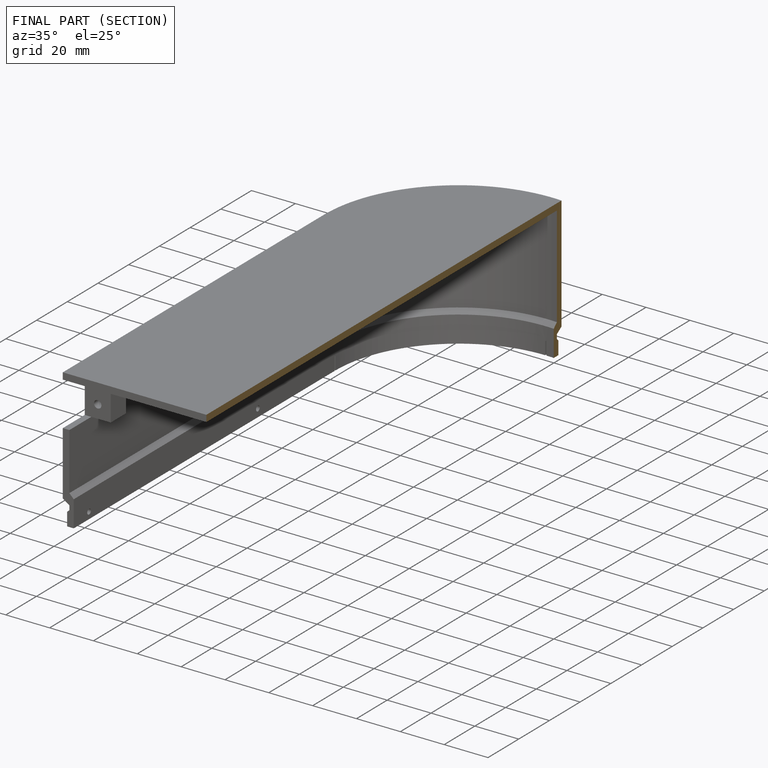
[diagram: finished part — half-section view (interior)]
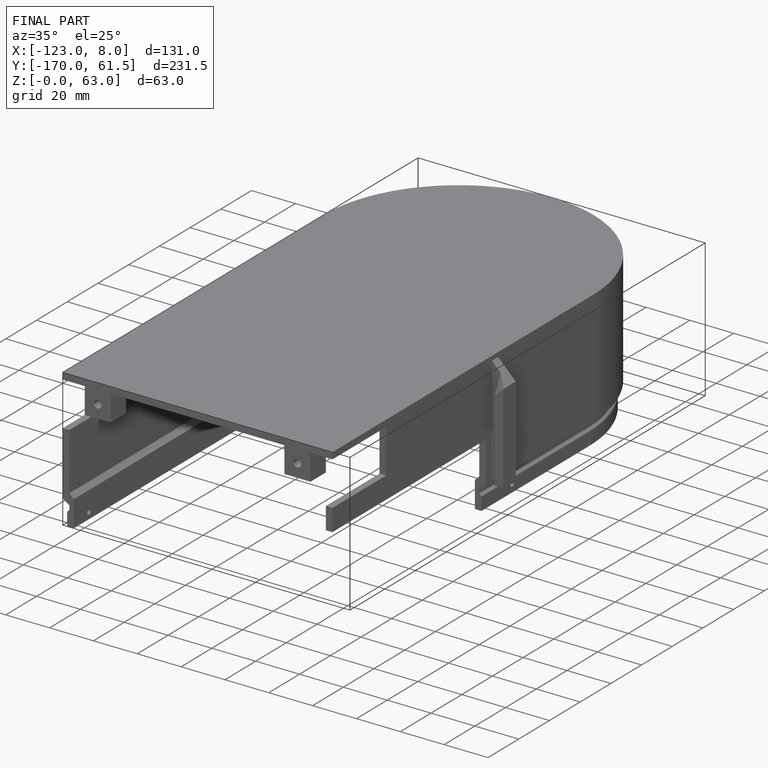
[diagram: finished part — iso view with bounding-box wireframe]
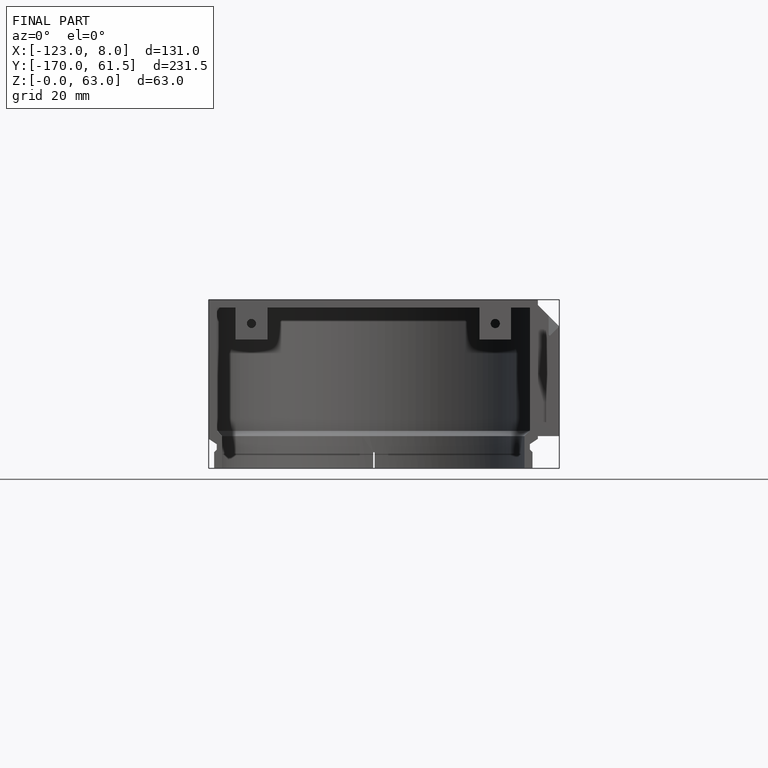
[diagram: finished part — front view with bounding-box wireframe]
